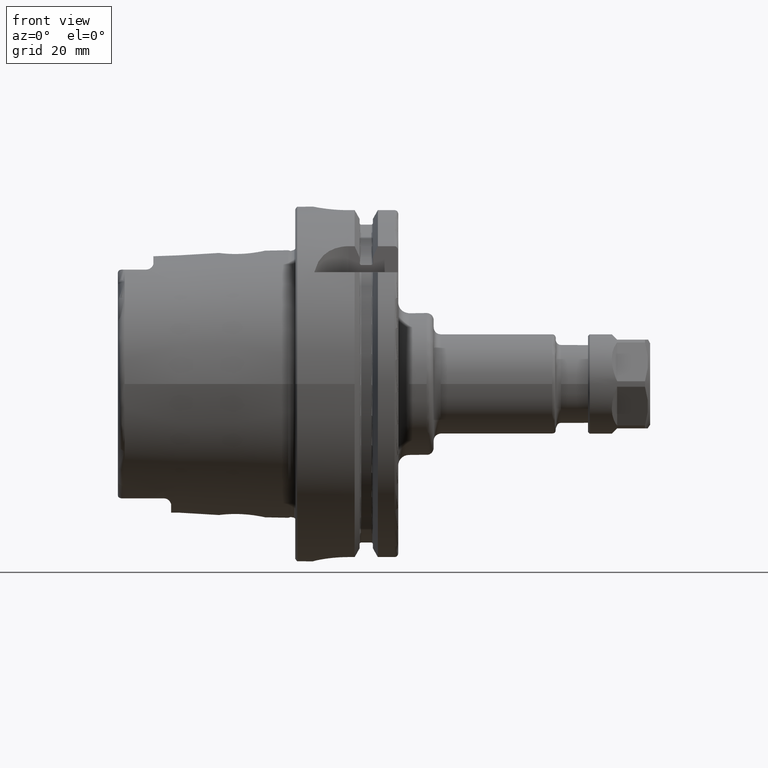
[diagram: clean part render]
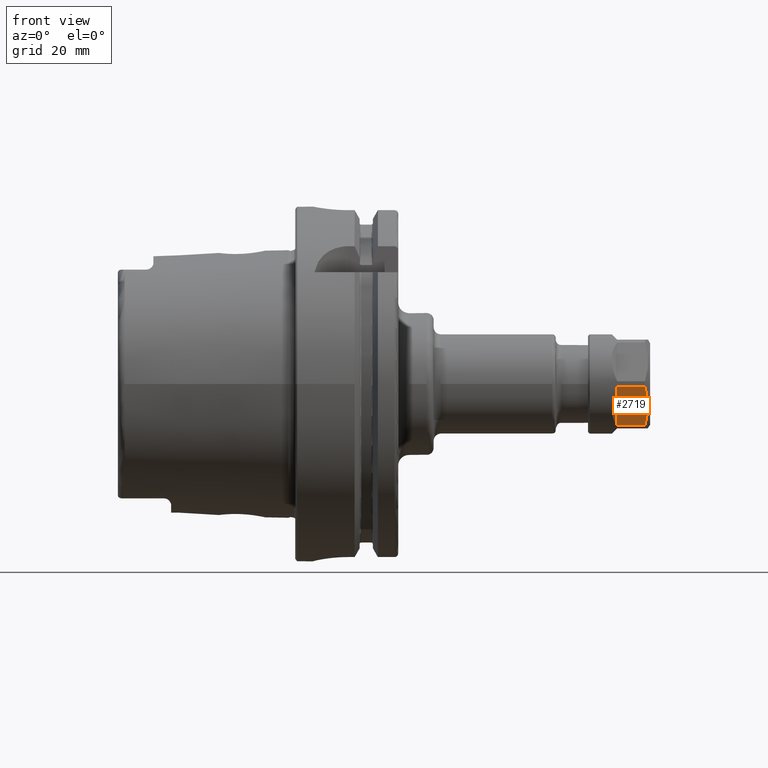
[diagram: same view with one face highlighted and labeled with its STEP entity id]
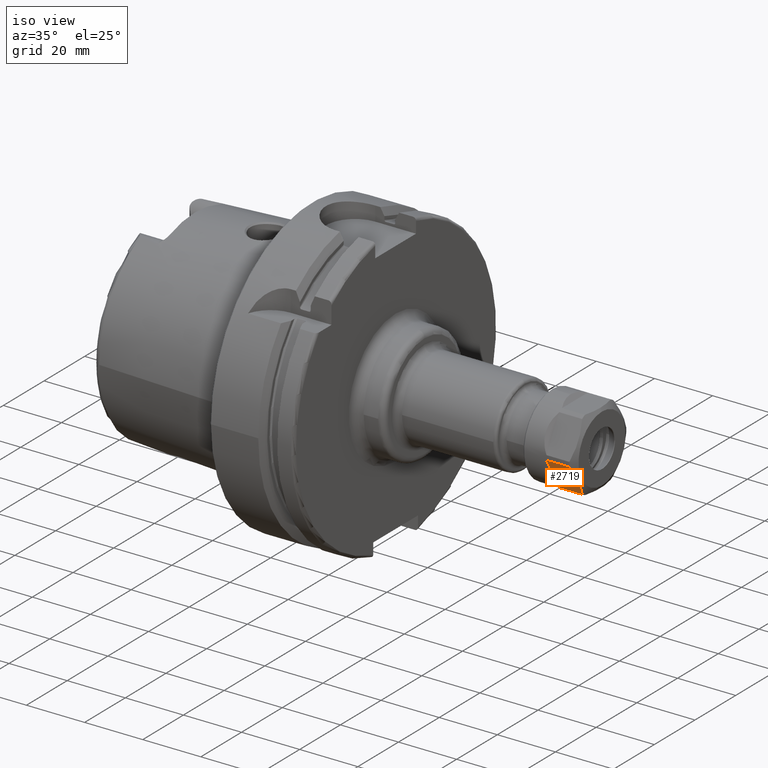
[diagram: same view with one face highlighted and labeled with its STEP entity id]
A machine part, front view. The second image highlights one B-rep face of the part: STEP entity #2719.
A second angle (iso view) of the same face is appended — the face is thin or edge-on in the first view.
In plain terms, the highlighted planar face has unit normal (0, 0.866, 0.5).
Its self-contained STEP definition (entity closure, byte-faithful):
#81=(
BOUNDED_CURVE()
B_SPLINE_CURVE(2,(#5582,#5583,#5584),.UNSPECIFIED.,.F.,.F.)
B_SPLINE_CURVE_WITH_KNOTS((3,3),(1.76676018698458,3.88699167916981),
 .UNSPECIFIED.)
CURVE()
GEOMETRIC_REPRESENTATION_ITEM()
RATIONAL_B_SPLINE_CURVE((1.57887257803629,1.76833728740072,1.5788725780362))
REPRESENTATION_ITEM('')
);
#252=PLANE('',#3129);
#434=FACE_OUTER_BOUND('',#606,.T.);
#606=EDGE_LOOP('',(#2514,#2515,#2516,#2517));
#733=LINE('',#5619,#875);
#734=LINE('',#5622,#876);
#749=LINE('',#5663,#891);
#875=VECTOR('',#3896,7.856624327026);
#876=VECTOR('',#3899,7.856624327026);
#891=VECTOR('',#3946,12.6095202129196);
#1298=VERTEX_POINT('',#5579);
#1299=VERTEX_POINT('',#5581);
#1309=VERTEX_POINT('',#5618);
#1310=VERTEX_POINT('',#5620);
#1683=EDGE_CURVE('',#1299,#1298,#81,.T.);
#1697=EDGE_CURVE('',#1309,#1299,#733,.T.);
#1699=EDGE_CURVE('',#1310,#1298,#734,.T.);
#1720=EDGE_CURVE('',#1309,#1310,#749,.T.);
#2514=ORIENTED_EDGE('',*,*,#1720,.F.);
#2515=ORIENTED_EDGE('',*,*,#1697,.T.);
#2516=ORIENTED_EDGE('',*,*,#1683,.T.);
#2517=ORIENTED_EDGE('',*,*,#1699,.F.);
#2719=ADVANCED_FACE('',(#434),#252,.F.);
#3129=AXIS2_PLACEMENT_3D('',#5662,#3944,#3945);
#3896=DIRECTION('',(1.,0.,0.));
#3899=DIRECTION('',(1.,0.,0.));
#3944=DIRECTION('center_axis',(0.,0.866025403784429,0.500000000000017));
#3945=DIRECTION('ref_axis',(0.,-0.500000000000017,0.866025403784429));
#3946=DIRECTION('',(0.,-0.500000000000017,0.866025403784429));
#5579=CARTESIAN_POINT('',(7.306624327026,-13.97769760054,-0.7899175830396));
#5581=CARTESIAN_POINT('',(7.306624327026,-7.672937494076,-11.71008241696));
#5582=CARTESIAN_POINT('Ctrl Pts',(7.30662432702559,-7.67293749407382,-11.7100824169588));
#5583=CARTESIAN_POINT('Ctrl Pts',(8.94588669847502,-10.8253175473039,-6.24999999999791));
#5584=CARTESIAN_POINT('Ctrl Pts',(7.30662432702476,-13.9776976005343,-0.789917583036417));
#5618=CARTESIAN_POINT('',(-0.55,-7.672937494076,-11.71008241696));
#5619=CARTESIAN_POINT('',(-0.55,-7.672937494076,-11.71008241696));
#5620=CARTESIAN_POINT('',(-0.55,-13.97769760054,-0.7899175830396));
#5622=CARTESIAN_POINT('',(-0.55,-13.97769760054,-0.7899175830396));
#5662=CARTESIAN_POINT('Origin',(8.75,-5.825317547305,-14.91025403784));
#5663=CARTESIAN_POINT('',(-0.55,-7.672937494076,-11.71008241696));